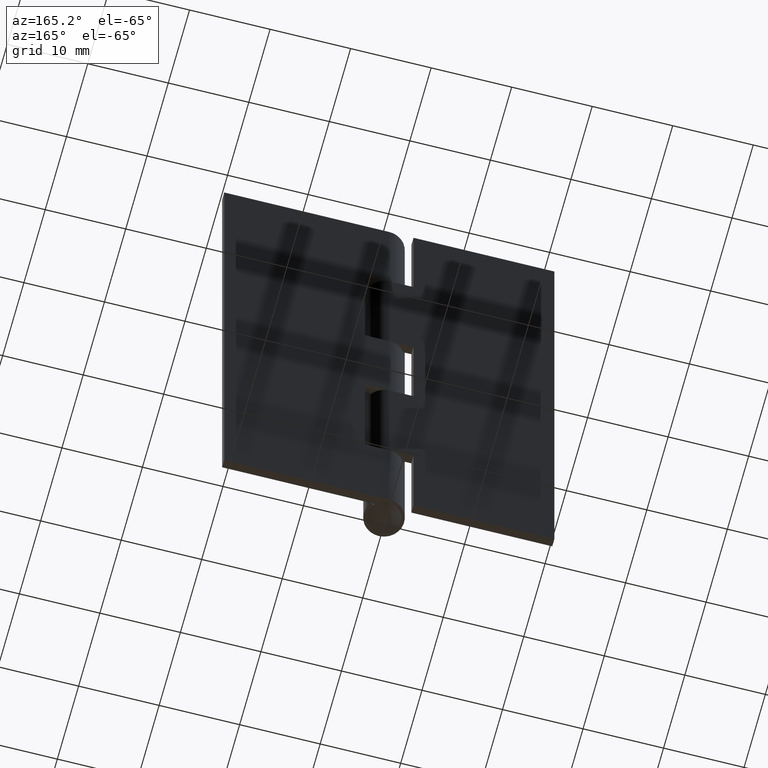
[diagram: clean part render]
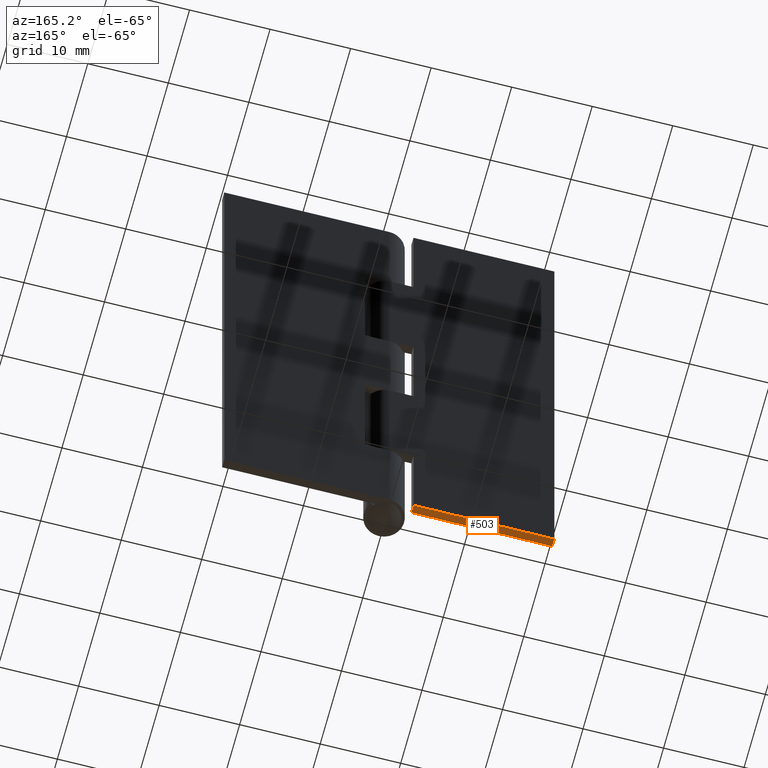
[diagram: same view with one face highlighted and labeled with its STEP entity id]
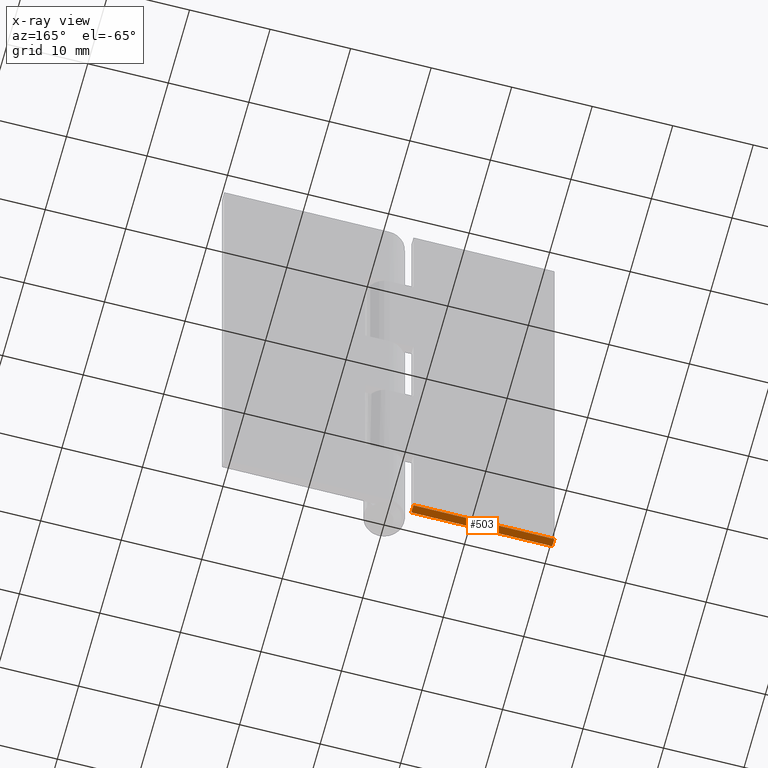
[diagram: x-ray of the same camera — body ghosted, the highlighted face saturated]
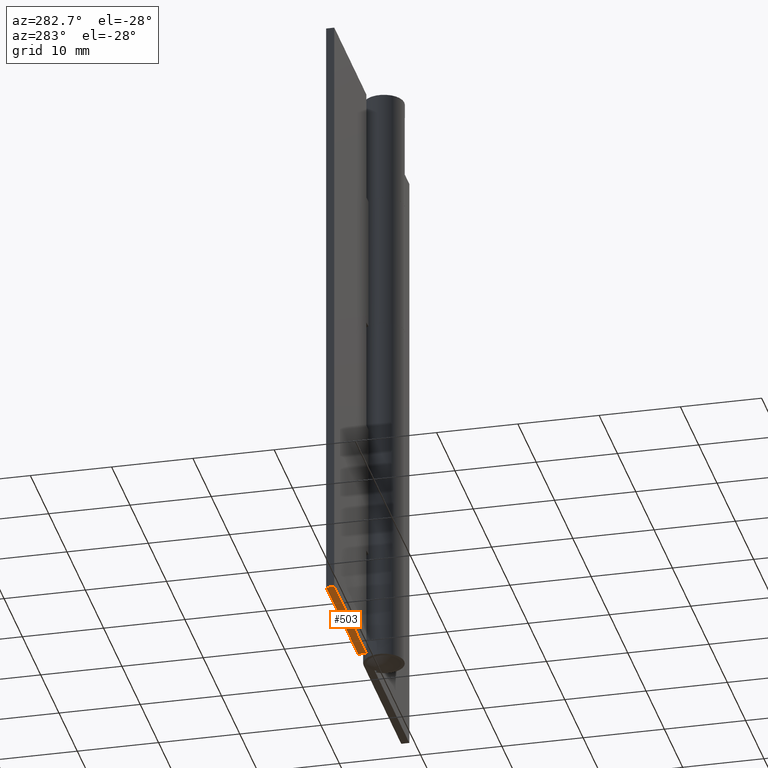
[diagram: same view with one face highlighted and labeled with its STEP entity id]
A machine part, auxiliary view. The second image highlights one B-rep face of the part: STEP entity #503.
The next image is the same camera in x-ray: the body ghosted, the highlighted face saturated — about 0% of this face is hidden behind the body in this view.
A second angle (auxiliary view) of the same face is appended — the face is thin or edge-on in the first view.
In plain terms, the highlighted face is a freeform B-spline surface patch.
Its self-contained STEP definition (entity closure, byte-faithful):
#234=CARTESIAN_POINT('',(-3.0,1.499999000000000,-1.421085E-014));
#235=VERTEX_POINT('',#234);
#236=CARTESIAN_POINT('',(-3.0,2.499998999999975,9.268043E-016));
#237=VERTEX_POINT('',#236);
#238=CARTESIAN_POINT('',(-3.0,1.499999000000000,-1.421085E-014));
#239=CARTESIAN_POINT('',(-3.0,2.499998999999975,9.268043E-016));
#240=QUASI_UNIFORM_CURVE('',1,(#238,#239),.UNSPECIFIED.,.F.,.U.);
#241=EDGE_CURVE('',#235,#237,#240,.T.);
#476=CARTESIAN_POINT('',(-21.374124966081610,1.450049001938194,-1.421085E-014));
#477=CARTESIAN_POINT('',(-2.125874564531818,1.450049001938194,-1.421085E-014));
#478=CARTESIAN_POINT('',(-21.374124966081610,2.549949024883897,-1.421085E-014));
#479=CARTESIAN_POINT('',(-2.125874564531818,2.549949024883897,-1.421085E-014));
#480=B_SPLINE_SURFACE_WITH_KNOTS('',1,1,((#476,#478),(#477,#479)),.UNSPECIFIED.,.F.,.F.,.U.,(2,2),(2,2),(0.0,19.248250401549790),(0.041708334948495,0.958291687403247),.UNSPECIFIED.);
#481=ORIENTED_EDGE('',*,*,#241,.F.);
#482=CARTESIAN_POINT('',(-20.500000000000000,1.499999000000000,0.0));
#483=VERTEX_POINT('',#482);
#484=CARTESIAN_POINT('',(-20.500000000000000,1.499999000000000,0.0));
#485=CARTESIAN_POINT('',(-3.0,1.499999000000000,-1.421085E-014));
#486=QUASI_UNIFORM_CURVE('',1,(#484,#485),.UNSPECIFIED.,.F.,.U.);
#487=EDGE_CURVE('',#483,#235,#486,.T.);
#488=ORIENTED_EDGE('',*,*,#487,.F.);
#489=CARTESIAN_POINT('',(-20.500000000000000,2.499999000000000,0.0));
#490=VERTEX_POINT('',#489);
#491=CARTESIAN_POINT('',(-20.500000000000000,2.499999000000000,0.0));
#492=CARTESIAN_POINT('',(-20.500000000000000,1.499999000000000,0.0));
#493=QUASI_UNIFORM_CURVE('',1,(#491,#492),.UNSPECIFIED.,.F.,.U.);
#494=EDGE_CURVE('',#490,#483,#493,.T.);
#495=ORIENTED_EDGE('',*,*,#494,.F.);
#496=CARTESIAN_POINT('',(-3.0,2.499998999999975,9.268043E-016));
#497=CARTESIAN_POINT('',(-20.500000000000000,2.499999000000000,0.0));
#498=QUASI_UNIFORM_CURVE('',1,(#496,#497),.UNSPECIFIED.,.F.,.U.);
#499=EDGE_CURVE('',#237,#490,#498,.T.);
#500=ORIENTED_EDGE('',*,*,#499,.F.);
#501=EDGE_LOOP('',(#481,#488,#495,#500));
#502=FACE_OUTER_BOUND('',#501,.T.);
#503=ADVANCED_FACE('',(#502),#480,.F.);